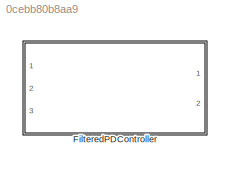
MODEL slx_0cebb80b8aa9
KIND library
CONFIG AbsTol = auto
CONFIG EnableMultiTasking = off
CONFIG FixedStep = auto
CONFIG MaxStep = auto
CONFIG MinStep = auto
CONFIG RelTol = 1e-3
CONFIG SampleTimeConstraint = Unconstrained
CONFIG Solver = VariableStepAuto
CONFIG SolverName = VariableStepAuto
CONFIG StartTime = 0.0
CONFIG StopTime = 10.0
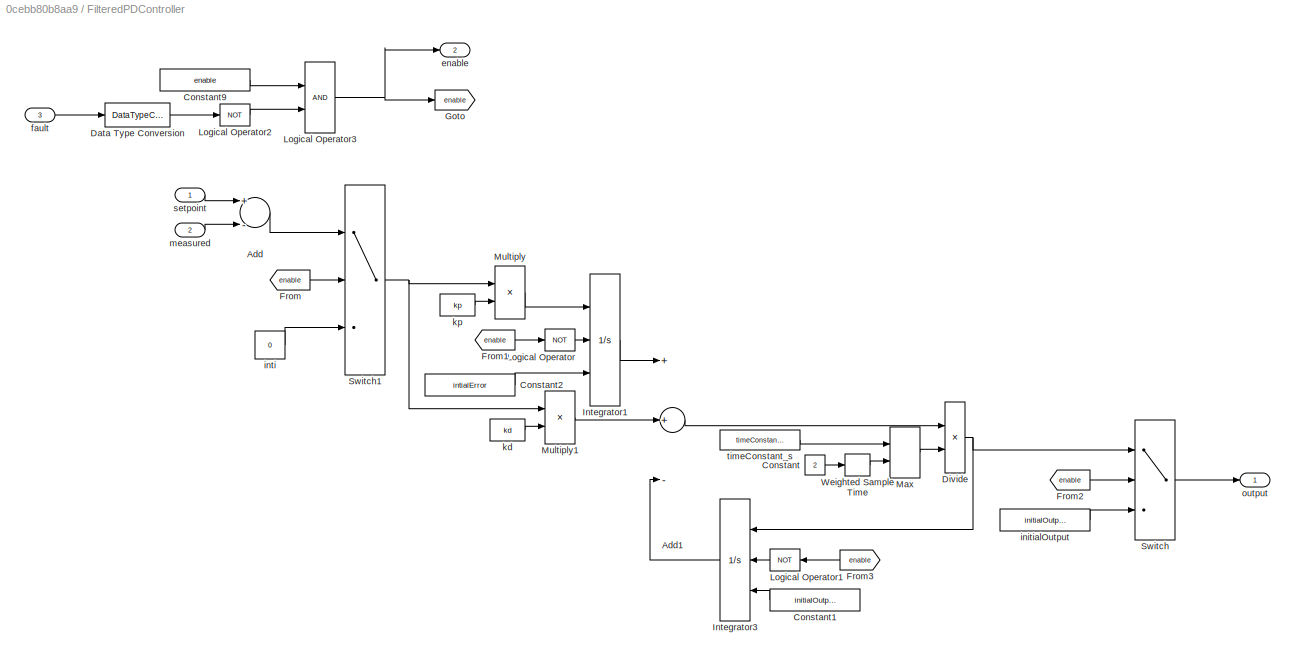
BLOCK [SubSystem] FilteredPDController
  Ports = [3, 2]
  RequestExecContextInheritance = off
BLOCK [Sum] FilteredPDController/Add
  InputSameDT = off
  Inputs = +-
  OutDataTypeStr = Inherit: Inherit via internal rule
  Ports = [2, 1]
  SaturateOnIntegerOverflow = off
BLOCK [Sum] FilteredPDController/Add1
  InputSameDT = off
  Inputs = ++-
  OutDataTypeStr = Inherit: Inherit via internal rule
  Ports = [3, 1]
  SaturateOnIntegerOverflow = off
BLOCK [Constant] FilteredPDController/Constant
  Value = 2
BLOCK [Constant] FilteredPDController/Constant1
  Value = initialOutput
BLOCK [Constant] FilteredPDController/Constant2
  Value = intialError
BLOCK [Constant] FilteredPDController/Constant9
  Value = enable
BLOCK [DataTypeConversion] FilteredPDController/Data Type Conversion
  OutDataTypeStr = boolean
  RndMeth = Floor
  SaturateOnIntegerOverflow = off
BLOCK [Product] FilteredPDController/Divide
  InputSameDT = off
  Inputs = */
  OutDataTypeStr = Inherit: Inherit via internal rule
  Ports = [2, 1]
  RndMeth = Floor
  SaturateOnIntegerOverflow = off
BLOCK [From] FilteredPDController/From
  GotoTag = enable
BLOCK [From] FilteredPDController/From1
  GotoTag = enable
BLOCK [From] FilteredPDController/From2
  GotoTag = enable
BLOCK [From] FilteredPDController/From3
  GotoTag = enable
BLOCK [Goto] FilteredPDController/Goto
  GotoTag = enable
BLOCK [Integrator] FilteredPDController/Integrator1
  ExternalReset = rising
  InitialCondition = 0.001
  InitialConditionSource = external
  Ports = [3, 1]
BLOCK [Integrator] FilteredPDController/Integrator3
  ExternalReset = level
  InitialCondition = 0.001
  InitialConditionSource = external
  Ports = [3, 1]
BLOCK [Logic] FilteredPDController/Logical Operator
  AllPortsSameDT = off
  Operator = NOT
  OutDataTypeStr = boolean
  Ports = [1, 1]
BLOCK [Logic] FilteredPDController/Logical Operator1
  AllPortsSameDT = off
  Operator = NOT
  OutDataTypeStr = boolean
  Ports = [1, 1]
BLOCK [Logic] FilteredPDController/Logical Operator2
  AllPortsSameDT = off
  Operator = NOT
  OutDataTypeStr = boolean
  Ports = [1, 1]
BLOCK [Logic] FilteredPDController/Logical Operator3
  AllPortsSameDT = off
  OutDataTypeStr = boolean
  Ports = [2, 1]
BLOCK [MinMax] FilteredPDController/Max
  Function = max
  InputSameDT = off
  Inputs = 2
  Ports = [2, 1]
  SaturateOnIntegerOverflow = off
BLOCK [Product] FilteredPDController/Multiply
  InputSameDT = off
  OutDataTypeStr = Inherit: Inherit via internal rule
  Ports = [2, 1]
  RndMeth = Floor
  SaturateOnIntegerOverflow = off
BLOCK [Product] FilteredPDController/Multiply1
  InputSameDT = off
  OutDataTypeStr = Inherit: Inherit via internal rule
  Ports = [2, 1]
  RndMeth = Floor
  SaturateOnIntegerOverflow = off
BLOCK [Switch] FilteredPDController/Switch
  Criteria = u2 > Threshold
  InputSameDT = off
  SaturateOnIntegerOverflow = off
BLOCK [Switch] FilteredPDController/Switch1
  Criteria = u2 > Threshold
  InputSameDT = off
  SaturateOnIntegerOverflow = off
BLOCK [SampleTimeMath] FilteredPDController/Weighted Sample Time
  TsampMathOp = Ts Only
  weightValue = 1
BLOCK [Outport] FilteredPDController/enable
  IconDisplay = Port number
  Port = 2
BLOCK [Inport] FilteredPDController/fault
  IconDisplay = Port number
  Port = 3
BLOCK [Constant] FilteredPDController/initialOutput
  Value = initialOutput
BLOCK [Constant] FilteredPDController/inti
  Value = 0
BLOCK [Constant] FilteredPDController/kd
  Value = kd
BLOCK [Constant] FilteredPDController/kp
  Value = kp
BLOCK [Inport] FilteredPDController/measured
  IconDisplay = Port number
  Port = 2
BLOCK [Outport] FilteredPDController/output
  IconDisplay = Port number
BLOCK [Inport] FilteredPDController/setpoint
  IconDisplay = Port number
BLOCK [Constant] FilteredPDController/timeConstant_s
  Value = timeConstant_s
LINE FilteredPDController/Add1:1 -> FilteredPDController/Divide:1
LINE FilteredPDController/Add:1 -> FilteredPDController/Switch1:1
LINE FilteredPDController/Constant1:1 -> FilteredPDController/Integrator3:3
LINE FilteredPDController/Constant2:1 -> FilteredPDController/Integrator1:3
LINE FilteredPDController/Constant9:1 -> FilteredPDController/Logical Operator3:1
LINE FilteredPDController/Constant:1 -> FilteredPDController/Weighted Sample Time:1
LINE FilteredPDController/Data Type Conversion:1 -> FilteredPDController/Logical Operator2:1
NET FilteredPDController/Divide:1 -> FilteredPDController/Integrator3:1, FilteredPDController/Switch:1
LINE FilteredPDController/From1:1 -> FilteredPDController/Logical Operator:1
LINE FilteredPDController/From2:1 -> FilteredPDController/Switch:2
LINE FilteredPDController/From3:1 -> FilteredPDController/Logical Operator1:1
LINE FilteredPDController/From:1 -> FilteredPDController/Switch1:2
LINE FilteredPDController/Integrator1:1 -> FilteredPDController/Add1:1
LINE FilteredPDController/Integrator3:1 -> FilteredPDController/Add1:3
LINE FilteredPDController/Logical Operator1:1 -> FilteredPDController/Integrator3:2
LINE FilteredPDController/Logical Operator2:1 -> FilteredPDController/Logical Operator3:2
NET FilteredPDController/Logical Operator3:1 -> FilteredPDController/Goto:1, FilteredPDController/enable:1
LINE FilteredPDController/Logical Operator:1 -> FilteredPDController/Integrator1:2
LINE FilteredPDController/Max:1 -> FilteredPDController/Divide:2
LINE FilteredPDController/Multiply1:1 -> FilteredPDController/Add1:2
LINE FilteredPDController/Multiply:1 -> FilteredPDController/Integrator1:1
NET FilteredPDController/Switch1:1 -> FilteredPDController/Multiply1:1, FilteredPDController/Multiply:1
LINE FilteredPDController/Switch:1 -> FilteredPDController/output:1
LINE FilteredPDController/Weighted Sample Time:1 -> FilteredPDController/Max:2
LINE FilteredPDController/fault:1 -> FilteredPDController/Data Type Conversion:1
LINE FilteredPDController/initialOutput:1 -> FilteredPDController/Switch:3
LINE FilteredPDController/inti:1 -> FilteredPDController/Switch1:3
LINE FilteredPDController/kd:1 -> FilteredPDController/Multiply1:2
LINE FilteredPDController/kp:1 -> FilteredPDController/Multiply:2
LINE FilteredPDController/measured:1 -> FilteredPDController/Add:2
LINE FilteredPDController/setpoint:1 -> FilteredPDController/Add:1
LINE FilteredPDController/timeConstant_s:1 -> FilteredPDController/Max:1
note: NET lines group one-source signal fan-out (src -> all destinations, sorted); 1:1 wires keep LINE
